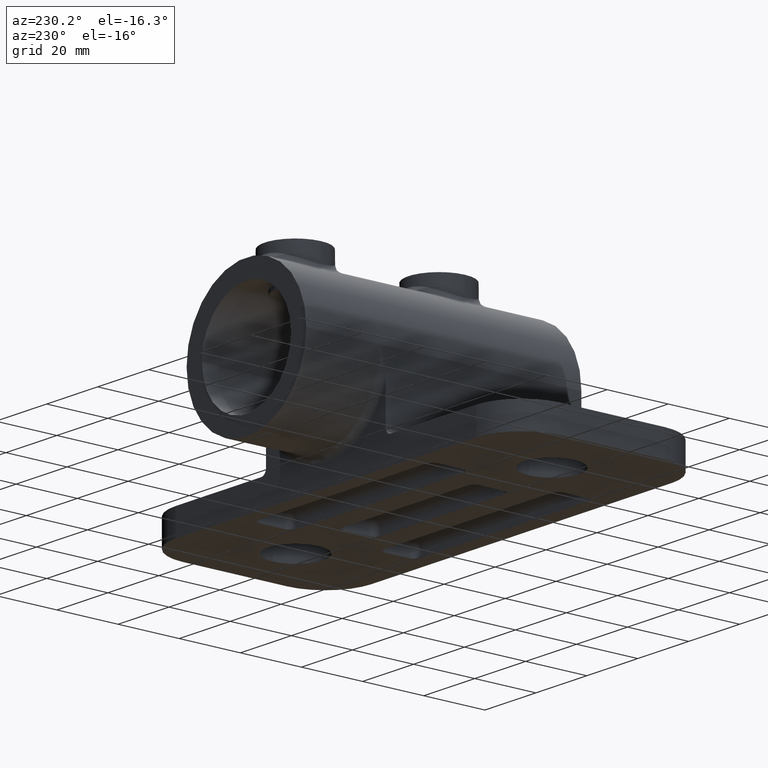
[diagram: clean part render]
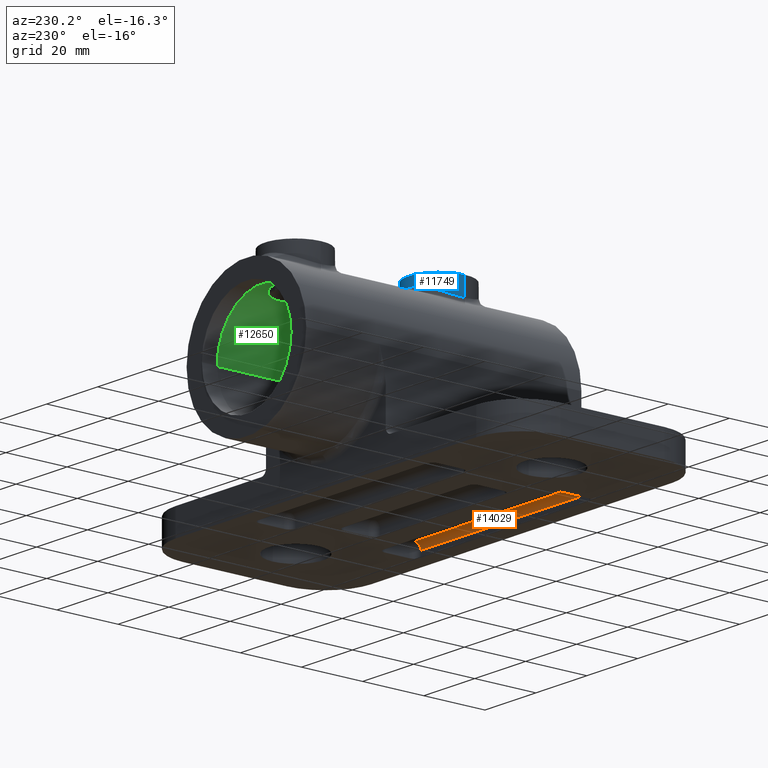
[diagram: same view with three faces highlighted in distinct colors, each labeled with its STEP entity id]
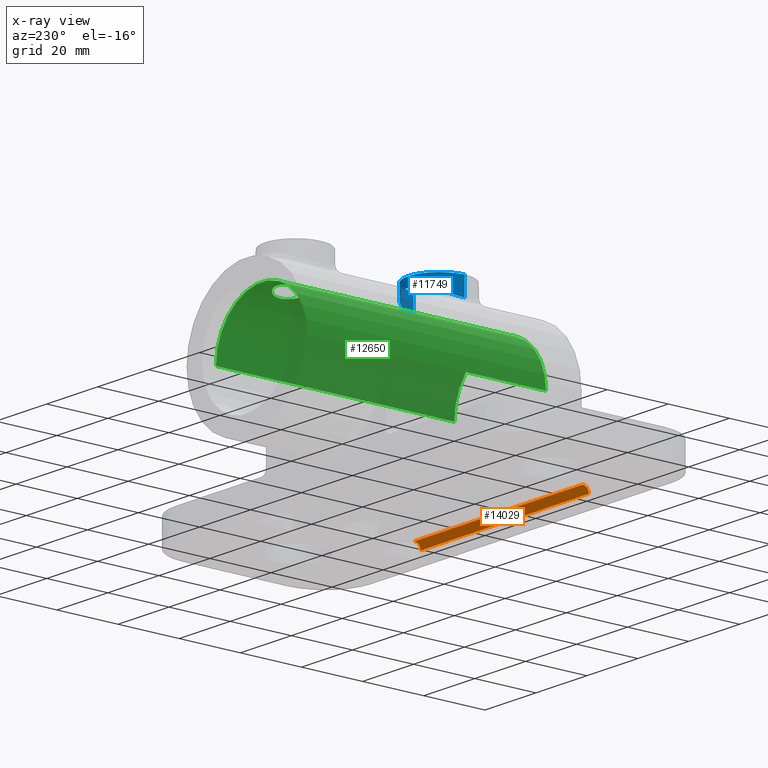
[diagram: x-ray of the same camera — body ghosted, the three highlighted faces saturated]
A machine part, auxiliary view with three faces highlighted in distinct colors.
The next image is the same camera in x-ray (body ghosted, the three faces saturated) — at least one of them is partly hidden behind the body in this view.
Their STEP definitions:

[orange] entity #14029 — the highlighted cylindrical surface (edge-blend (fillet) strip) has radius 2 mm, axis along (-1, 0, 0).
#85 = DIRECTION ( 'NONE',  ( 0.0000000000000000000, 0.0000000000000000000, -1.000000000000000000 ) ) ;
#319 = ORIENTED_EDGE ( 'NONE', *, *, #13610, .T. ) ;
#1565 = ORIENTED_EDGE ( 'NONE', *, *, #12088, .T. ) ;
#1793 = DIRECTION ( 'NONE',  ( 1.000000000000000000, -0.0000000000000000000, -0.0000000000000000000 ) ) ;
#1844 = LINE ( 'NONE', #4081, #12101 ) ;
#2598 = DIRECTION ( 'NONE',  ( 0.0000000000000000000, 0.0000000000000000000, 1.000000000000000000 ) ) ;
#2699 = EDGE_LOOP ( 'NONE', ( #1565, #9946, #319, #4720 ) ) ;
#2759 = VERTEX_POINT ( 'NONE', #7430 ) ;
#3259 = CARTESIAN_POINT ( 'NONE',  ( 33.00000000000001400, -24.49999999999999300, 4.000000000000000000 ) ) ;
#3459 = DIRECTION ( 'NONE',  ( 0.0000000000000000000, 0.0000000000000000000, 1.000000000000000000 ) ) ;
#3882 = CYLINDRICAL_SURFACE ( 'NONE', #11188, 2.000000000000000000 ) ;
#3949 = DIRECTION ( 'NONE',  ( -1.000000000000000000, 0.0000000000000000000, 0.0000000000000000000 ) ) ;
#4081 = CARTESIAN_POINT ( 'NONE',  ( 0.0000000000000000000, -24.49999999999999300, 4.000000000000000000 ) ) ;
#4720 = ORIENTED_EDGE ( 'NONE', *, *, #8122, .F. ) ;
#4721 = DIRECTION ( 'NONE',  ( 1.000000000000000000, -0.0000000000000000000, -0.0000000000000000000 ) ) ;
#4767 = CARTESIAN_POINT ( 'NONE',  ( 33.00000000000001400, -24.49999999999999300, 2.000000000000000000 ) ) ;
#6016 = VERTEX_POINT ( 'NONE', #3259 ) ;
#7430 = CARTESIAN_POINT ( 'NONE',  ( -32.99999999999999300, -24.49999999999999300, 4.000000000000000000 ) ) ;
#7622 = CARTESIAN_POINT ( 'NONE',  ( -32.99999999999999300, -24.49999999999999300, 2.000000000000000000 ) ) ;
#7727 = DIRECTION ( 'NONE',  ( -1.000000000000000000, 0.0000000000000000000, 0.0000000000000000000 ) ) ;
#7773 = CARTESIAN_POINT ( 'NONE',  ( -32.99999999999999300, -26.49999999999999600, 2.000000000000000000 ) ) ;
#8122 = EDGE_CURVE ( 'NONE', #6016, #2759, #1844, .T. ) ;
#8349 = FACE_OUTER_BOUND ( 'NONE', #2699, .T. ) ;
#9666 = EDGE_CURVE ( 'NONE', #14983, #10445, #10044, .T. ) ;
#9946 = ORIENTED_EDGE ( 'NONE', *, *, #9666, .F. ) ;
#9950 = CARTESIAN_POINT ( 'NONE',  ( 0.0000000000000000000, -24.49999999999999300, 2.000000000000000000 ) ) ;
#10044 = LINE ( 'NONE', #15382, #12533 ) ;
#10445 = VERTEX_POINT ( 'NONE', #11108 ) ;
#11108 = CARTESIAN_POINT ( 'NONE',  ( 33.00000000000001400, -26.49999999999999600, 2.000000000000000000 ) ) ;
#11188 = AXIS2_PLACEMENT_3D ( 'NONE', #9950, #3949, #2598 ) ;
#12088 = EDGE_CURVE ( 'NONE', #6016, #10445, #15287, .T. ) ;
#12101 = VECTOR ( 'NONE', #7727, 1000.000000000000000 ) ;
#12533 = VECTOR ( 'NONE', #1793, 1000.000000000000000 ) ;
#12550 = CIRCLE ( 'NONE', #15397, 2.000000000000000000 ) ;
#13610 = EDGE_CURVE ( 'NONE', #14983, #2759, #12550, .T. ) ;
#13611 = AXIS2_PLACEMENT_3D ( 'NONE', #4767, #4721, #3459 ) ;
#13793 = DIRECTION ( 'NONE',  ( -1.000000000000000000, -0.0000000000000000000, 0.0000000000000000000 ) ) ;
#14029 = ADVANCED_FACE ( 'NONE', ( #8349 ), #3882, .F. ) ;
#14983 = VERTEX_POINT ( 'NONE', #7773 ) ;
#15287 = CIRCLE ( 'NONE', #13611, 2.000000000000000000 ) ;
#15382 = CARTESIAN_POINT ( 'NONE',  ( 35.00000000000001400, -26.49999999999999600, 2.000000000000000000 ) ) ;
#15397 = AXIS2_PLACEMENT_3D ( 'NONE', #7622, #13793, #85 ) ;

[blue] entity #11749 — the highlighted cylindrical surface (partial cylindrical patch) has radius 10 mm, axis along (-0, -0, -1).
#452 = AXIS2_PLACEMENT_3D ( 'NONE', #7173, #14574, #13166 ) ;
#737 = CARTESIAN_POINT ( 'NONE',  ( 4.202443412559092400, 4.079814808181160900, 56.99886940166952300 ) ) ;
#798 = CARTESIAN_POINT ( 'NONE',  ( 8.781884316908490400, -0.1738427739617313900, 55.22339395785043300 ) ) ;
#857 = CARTESIAN_POINT ( 'NONE',  ( -0.8974320074395721900, 4.965149626604985900, 57.48031015028217200 ) ) ;
#908 = CARTESIAN_POINT ( 'NONE',  ( -10.00000000000000000, -4.999999999990628800, 54.50000000000000700 ) ) ;
#939 = DIRECTION ( 'NONE',  ( -1.000000000000000000, 0.0000000000000000000, 0.0000000000000000000 ) ) ;
#964 = CARTESIAN_POINT ( 'NONE',  ( 7.717353291189629000, 1.390650506775037900, 55.76381430800442700 ) ) ;
#965 = VERTEX_POINT ( 'NONE', #14770 ) ;
#1124 = B_SPLINE_CURVE_WITH_KNOTS ( 'NONE', 3,
 ( #13269, #7165, #15616, #8271, #15735, #8394, #5726, #798, #11907, #964, #14350, #4638, #3212, #6990, #10625, #737, #2144, #2080, #3265, #10733, #5852, #9568, #8325, #3387, #857, #9618, #2202, #9448, #2028, #4531, #10849, #10688, #14515, #11853, #5784, #14399, #9393, #12035, #3338, #7059, #11968, #4707, #13218, #9512, #5958, #908 ),
 .UNSPECIFIED., .F., .F.,
 ( 4, 2, 2, 2, 2, 2, 2, 2, 2, 2, 2, 2, 2, 2, 2, 2, 2, 2, 2, 2, 2, 2, 4 ),
 ( 0.0004743010825433168500, 0.002473722796494837800, 0.003473433653470599000, 0.004473144510446360600, 0.006472566224397885600, 0.008471987938349414100, 0.01047140965230094000, 0.01147112050927670400, 0.01247083136625246900, 0.01347054222322823500, 0.01447025308020400000, 0.01646967479415553000, 0.01746938565113129200, 0.01846909650810705700, 0.02046851822205858800, 0.02146822907903435400, 0.02246793993601011900, 0.02446736164996164400, 0.02646678336391316800, 0.02746649422088892600, 0.02846620507786468800, 0.03046562679181619900, 0.03246504850576770900 ),
 .UNSPECIFIED. ) ;
#1361 = VECTOR ( 'NONE', #12530, 1000.000000000000000 ) ;
#2028 = CARTESIAN_POINT ( 'NONE',  ( -3.441122964997928200, 4.411514090330207700, 57.17382086524881400 ) ) ;
#2048 = VERTEX_POINT ( 'NONE', #10268 ) ;
#2080 = CARTESIAN_POINT ( 'NONE',  ( 3.306689202942781700, 4.442978471801316300, 57.19204127309959800 ) ) ;
#2144 = CARTESIAN_POINT ( 'NONE',  ( 3.908341913213029700, 4.210260549690426400, 57.06766813145009100 ) ) ;
#2202 = CARTESIAN_POINT ( 'NONE',  ( -1.877204913549570800, 4.827603197816224600, 57.40318883797970500 ) ) ;
#2596 = CARTESIAN_POINT ( 'NONE',  ( -10.00000000000000000, -5.000000000000015100, 60.50000000000000000 ) ) ;
#3212 = CARTESIAN_POINT ( 'NONE',  ( 5.871224362835102200, 3.120198969581409200, 56.51654954047591400 ) ) ;
#3265 = CARTESIAN_POINT ( 'NONE',  ( 2.999139663751143400, 4.545252831983747300, 57.24761982337143000 ) ) ;
#3338 = CARTESIAN_POINT ( 'NONE',  ( -8.677692479960500200, -0.02000301374181383300, 55.27775892785310700 ) ) ;
#3387 = CARTESIAN_POINT ( 'NONE',  ( -0.5656145714056950400, 4.989405865237849000, 57.49401856347800100 ) ) ;
#3472 = CARTESIAN_POINT ( 'NONE',  ( 0.0000000000000000000, -5.000000000000015100, 60.50000000000000000 ) ) ;
#4531 = CARTESIAN_POINT ( 'NONE',  ( -4.328483127243109700, 4.020460908421007700, 56.96800329920918000 ) ) ;
#4638 = CARTESIAN_POINT ( 'NONE',  ( 6.370729125933603000, 2.733879497706559000, 56.33408414516515000 ) ) ;
#4667 = LINE ( 'NONE', #7715, #1361 ) ;
#4707 = CARTESIAN_POINT ( 'NONE',  ( -9.485964044474595600, -1.770426347278628800, 54.82062982950028400 ) ) ;
#5272 = CARTESIAN_POINT ( 'NONE',  ( 10.00000000000000000, -5.000000000000015100, 54.50000000000000700 ) ) ;
#5426 = ORIENTED_EDGE ( 'NONE', *, *, #10264, .F. ) ;
#5472 = VECTOR ( 'NONE', #15952, 1000.000000000000000 ) ;
#5648 = AXIS2_PLACEMENT_3D ( 'NONE', #3472, #8302, #939 ) ;
#5726 = CARTESIAN_POINT ( 'NONE',  ( 9.191142444055980600, -1.046998355101046700, 54.99207952168765700 ) ) ;
#5784 = CARTESIAN_POINT ( 'NONE',  ( -6.706661166500553300, 2.444847596005561600, 56.20332972267426200 ) ) ;
#5852 = CARTESIAN_POINT ( 'NONE',  ( 2.046067682437753700, 4.793972364584603500, 57.38452097239395800 ) ) ;
#5958 = CARTESIAN_POINT ( 'NONE',  ( -9.999999999999378300, -4.341118579382413900, 54.50000000000039100 ) ) ;
#6123 = ORIENTED_EDGE ( 'NONE', *, *, #13507, .T. ) ;
#6282 = CARTESIAN_POINT ( 'NONE',  ( 9.992502146471911900, -4.604843078712950600, 54.50479689285346300 ) ) ;
#6325 = CARTESIAN_POINT ( 'NONE',  ( -10.00000000000000000, -4.999999999990628800, 54.50000000000000700 ) ) ;
#6400 = EDGE_LOOP ( 'NONE', ( #5426, #11248, #7478, #6123, #9276 ) ) ;
#6990 = CARTESIAN_POINT ( 'NONE',  ( 5.059651976424375700, 3.631462714021870000, 56.76889878522977300 ) ) ;
#7059 = CARTESIAN_POINT ( 'NONE',  ( -8.978768718890783900, -0.5858829815497703700, 55.11274768960250700 ) ) ;
#7165 = CARTESIAN_POINT ( 'NONE',  ( 9.957158103175425300, -3.860204525398997600, 54.52738442315904200 ) ) ;
#7173 = CARTESIAN_POINT ( 'NONE',  ( 0.0000000000000000000, -5.000000000000015100, 60.50000000000000000 ) ) ;
#7478 = ORIENTED_EDGE ( 'NONE', *, *, #8012, .T. ) ;
#7715 = CARTESIAN_POINT ( 'NONE',  ( 10.00000000000000000, -5.000000000000014200, 60.50000000000000000 ) ) ;
#8012 = EDGE_CURVE ( 'NONE', #10144, #965, #10337, .T. ) ;
#8038 = VERTEX_POINT ( 'NONE', #6325 ) ;
#8271 = CARTESIAN_POINT ( 'NONE',  ( 9.625832381568074000, -2.270839792919725000, 54.73401771136975900 ) ) ;
#8302 = DIRECTION ( 'NONE',  ( -0.0000000000000000000, -0.0000000000000000000, -1.000000000000000000 ) ) ;
#8325 = CARTESIAN_POINT ( 'NONE',  ( 0.4206908815547585900, 5.012772678809644100, 57.50721105844552000 ) ) ;
#8394 = CARTESIAN_POINT ( 'NONE',  ( 9.315467926709683200, -1.349341017650336600, 54.91966125683678300 ) ) ;
#8785 = FACE_OUTER_BOUND ( 'NONE', #6400, .T. ) ;
#9276 = ORIENTED_EDGE ( 'NONE', *, *, #12224, .F. ) ;
#9393 = CARTESIAN_POINT ( 'NONE',  ( -7.991858988676627400, 1.044002361217745400, 55.63227827540975300 ) ) ;
#9448 = CARTESIAN_POINT ( 'NONE',  ( -2.828701595375733700, 4.613593443091350100, 57.28464812445259500 ) ) ;
#9512 = CARTESIAN_POINT ( 'NONE',  ( -9.932489184048709100, -3.668475521765463200, 54.54369440813837100 ) ) ;
#9568 = CARTESIAN_POINT ( 'NONE',  ( 1.073600518565766000, 4.963961686196354300, 57.47939311329598400 ) ) ;
#9618 = CARTESIAN_POINT ( 'NONE',  ( -1.554528958250191600, 4.883978500915715100, 57.43474222019799700 ) ) ;
#9979 = CARTESIAN_POINT ( 'NONE',  ( 9.998124099447501600, -4.762818192823984600, 54.50120079297876400 ) ) ;
#10144 = VERTEX_POINT ( 'NONE', #5272 ) ;
#10264 = EDGE_CURVE ( 'NONE', #2048, #15843, #14482, .T. ) ;
#10268 = CARTESIAN_POINT ( 'NONE',  ( 10.00000000000000000, -5.000000000000014200, 60.50000000000000000 ) ) ;
#10337 = B_SPLINE_CURVE_WITH_KNOTS ( 'NONE', 3,
 ( #12345, #13542, #9979, #6282, #11050 ),
 .UNSPECIFIED., .F., .F.,
 ( 4, 1, 4 ),
 ( 1.734723475976807100E-018, 0.0002371505412716592900, 0.0004743010825433168500 ),
 .UNSPECIFIED. ) ;
#10625 = CARTESIAN_POINT ( 'NONE',  ( 4.777554762070085600, 3.790821240478541300, 56.84967993738816000 ) ) ;
#10688 = CARTESIAN_POINT ( 'NONE',  ( -5.177398372207538700, 3.561364975102733900, 56.73395517974615400 ) ) ;
#10733 = CARTESIAN_POINT ( 'NONE',  ( 2.369848955674169300, 4.720622730898935700, 57.34378759067914900 ) ) ;
#10849 = CARTESIAN_POINT ( 'NONE',  ( -4.619372170802984500, 3.874898584719943100, 56.89258543287106600 ) ) ;
#11050 = CARTESIAN_POINT ( 'NONE',  ( 9.988754510338575100, -4.525886793908045800, 54.50719191721514500 ) ) ;
#11248 = ORIENTED_EDGE ( 'NONE', *, *, #15021, .T. ) ;
#11561 = CARTESIAN_POINT ( 'NONE',  ( -10.00000000000000000, -5.000000000000015100, 60.50000000000000000 ) ) ;
#11749 = ADVANCED_FACE ( 'NONE', ( #8785 ), #14729, .T. ) ;
#11853 = CARTESIAN_POINT ( 'NONE',  ( -6.224945664710150000, 2.851720731232130700, 56.38991945562645500 ) ) ;
#11907 = CARTESIAN_POINT ( 'NONE',  ( 8.459269658909750700, 0.3701687644457116700, 55.39735926411588500 ) ) ;
#11968 = CARTESIAN_POINT ( 'NONE',  ( -9.117058833981762000, -0.8789985227411928300, 55.03438634898666500 ) ) ;
#12035 = CARTESIAN_POINT ( 'NONE',  ( -8.515066063825610600, 0.2529604593990210600, 55.36434530760640600 ) ) ;
#12224 = EDGE_CURVE ( 'NONE', #15843, #8038, #15680, .T. ) ;
#12345 = CARTESIAN_POINT ( 'NONE',  ( 10.00000000000000000, -5.000000000000015100, 54.50000000000000700 ) ) ;
#12530 = DIRECTION ( 'NONE',  ( -0.0000000000000000000, -0.0000000000000000000, -1.000000000000000000 ) ) ;
#13166 = DIRECTION ( 'NONE',  ( 1.000000000000000000, 0.0000000000000000000, 0.0000000000000000000 ) ) ;
#13218 = CARTESIAN_POINT ( 'NONE',  ( -9.674629748832099800, -2.386795444211209400, 54.70459481365085700 ) ) ;
#13269 = CARTESIAN_POINT ( 'NONE',  ( 9.988754510338575100, -4.525886793908045800, 54.50719191721514500 ) ) ;
#13507 = EDGE_CURVE ( 'NONE', #965, #8038, #1124, .T. ) ;
#13542 = CARTESIAN_POINT ( 'NONE',  ( 9.999999999999998200, -4.920918494425964500, 54.50000000000000000 ) ) ;
#14350 = CARTESIAN_POINT ( 'NONE',  ( 7.293341700243885000, 1.870680353833111600, 55.95817364610378800 ) ) ;
#14399 = CARTESIAN_POINT ( 'NONE',  ( -7.596369620477956300, 1.534541171274076000, 55.82176337293267200 ) ) ;
#14482 = CIRCLE ( 'NONE', #452, 10.00000000000000000 ) ;
#14515 = CARTESIAN_POINT ( 'NONE',  ( -5.446372741348914000, 3.392668866621323200, 56.65035169605052100 ) ) ;
#14574 = DIRECTION ( 'NONE',  ( 0.0000000000000000000, 0.0000000000000000000, 1.000000000000000000 ) ) ;
#14729 = CYLINDRICAL_SURFACE ( 'NONE', #5648, 10.00000000000000000 ) ;
#14770 = CARTESIAN_POINT ( 'NONE',  ( 9.988754510338575100, -4.525886793908045800, 54.50719191721514500 ) ) ;
#15021 = EDGE_CURVE ( 'NONE', #2048, #10144, #4667, .T. ) ;
#15616 = CARTESIAN_POINT ( 'NONE',  ( 9.860534723090122400, -3.214023272672885200, 54.58944742188821000 ) ) ;
#15680 = LINE ( 'NONE', #2596, #5472 ) ;
#15735 = CARTESIAN_POINT ( 'NONE',  ( 9.532505129653280600, -1.960822536918759500, 54.79079304849613400 ) ) ;
#15843 = VERTEX_POINT ( 'NONE', #11561 ) ;
#15952 = DIRECTION ( 'NONE',  ( -0.0000000000000000000, -0.0000000000000000000, -1.000000000000000000 ) ) ;

[green] entity #12650 — the highlighted cylindrical surface (partial cylindrical patch) has radius 18 mm, axis along (-0, -1, 0).
#10 = CARTESIAN_POINT ( 'NONE',  ( 5.700288581353437000, -3.465553718506579900, 49.07367201749632100 ) ) ;
#69 = CARTESIAN_POINT ( 'NONE',  ( -0.7792966384515384000, 0.8611049642852177700, 49.98714456683021700 ) ) ;
#107 = EDGE_CURVE ( 'NONE', #12876, #9114, #13823, .T. ) ;
#117 = CARTESIAN_POINT ( 'NONE',  ( 5.297805365069574000, -2.374655498447134000, 49.20341653813273600 ) ) ;
#133 = VECTOR ( 'NONE', #5233, 1000.000000000000000 ) ;
#170 = CARTESIAN_POINT ( 'NONE',  ( -4.688314003953420800, -1.397666235263747400, 49.38013019639038200 ) ) ;
#249 = CARTESIAN_POINT ( 'NONE',  ( -5.708469957345782200, -6.541337117523038800, 49.07102582291550900 ) ) ;
#253 = CARTESIAN_POINT ( 'NONE',  ( -0.3902309496287959000, 36.10967878153501700, 49.99682053144062600 ) ) ;
#300 = CARTESIAN_POINT ( 'NONE',  ( 5.586793662114989600, 40.09328386085515200, 49.11114563399321800 ) ) ;
#341 = CARTESIAN_POINT ( 'NONE',  ( 1.536557827171986900, -10.69971432233089300, 49.93526818897861100 ) ) ;
#345 = CARTESIAN_POINT ( 'NONE',  ( 5.520500977030940800, 39.90923186453517200, 49.13272108228019200 ) ) ;
#398 = CARTESIAN_POINT ( 'NONE',  ( -5.595498191781887300, -6.910201160467650500, 49.10890141639299600 ) ) ;
#449 = CARTESIAN_POINT ( 'NONE',  ( 18.00000000000000700, 52.99999999999998600, 32.00000000000000000 ) ) ;
#456 = CARTESIAN_POINT ( 'NONE',  ( 0.3894043785967176700, -10.89995714199231200, 49.99998595209755300 ) ) ;
#479 = CARTESIAN_POINT ( 'NONE',  ( -5.852218664619819300, -4.225796023473378700, 49.02210171841616000 ) ) ;
#536 = B_SPLINE_CURVE_WITH_KNOTS ( 'NONE', 3,
 ( #13686, #15222, #8958, #13850, #1585, #10180, #2773, #11405, #13952, #8902, #7725, #11349, #5174, #10287, #1637, #4076, #3973, #4025, #12594, #12640, #5228, #253, #12537, #2674, #9117, #6479, #11305, #5334, #12687, #6584, #14002, #15170, #2868, #10230, #15079, #6526, #7676, #345, #300, #1473, #2817, #10135, #3929, #1526 ),
 .UNSPECIFIED., .F., .F.,
 ( 4, 2, 2, 2, 2, 2, 2, 2, 2, 2, 2, 2, 2, 2, 2, 2, 2, 2, 2, 2, 2, 4 ),
 ( 0.01857493708364867100, 0.01915524997473587500, 0.01973556286582307800, 0.02089618864799746800, 0.02205681443017185400, 0.02321744021234624000, 0.02379775310343343300, 0.02437806599452062300, 0.02553869177669500600, 0.02669931755886938800, 0.02727963044995657800, 0.02785994334104376800, 0.02902056912321814700, 0.02960088201430534000, 0.03018119490539253300, 0.03134182068756692600, 0.03250244646974132700, 0.03366307225191572000, 0.03482369803409012000, 0.03540401092517732300, 0.03598432381626454100, 0.03714494959843896900 ),
 .UNSPECIFIED. ) ;
#944 = CARTESIAN_POINT ( 'NONE',  ( -5.852218664619818400, 42.77420397652662100, 49.02210171841613800 ) ) ;
#1003 = CARTESIAN_POINT ( 'NONE',  ( -1.538436291759510500, 47.70903393134670300, 49.93816843200412600 ) ) ;
#1056 = CARTESIAN_POINT ( 'NONE',  ( -0.7792966384515392900, 47.86110496428522500, 49.98714456683021700 ) ) ;
#1090 = LINE ( 'NONE', #13757, #133 ) ;
#1146 = CARTESIAN_POINT ( 'NONE',  ( 4.679500392762672200, 45.59851884893898000, 49.38154912533406100 ) ) ;
#1237 = CARTESIAN_POINT ( 'NONE',  ( -5.899999999999992400, -5.000000000000007100, 49.00558731711434000 ) ) ;
#1245 = CARTESIAN_POINT ( 'NONE',  ( 3.901009467089473500, -0.5572492271389254400, 49.57439182870286500 ) ) ;
#1470 = CARTESIAN_POINT ( 'NONE',  ( -1.538796806007453500, -10.70887397032133800, 49.93811789357870600 ) ) ;
#1473 = CARTESIAN_POINT ( 'NONE',  ( 5.700240793470978700, 40.46537146032891000, 49.07368803824241600 ) ) ;
#1503 = CARTESIAN_POINT ( 'NONE',  ( -5.899999999999995000, -4.806562791024030700, 49.00558731711435500 ) ) ;
#1524 = CARTESIAN_POINT ( 'NONE',  ( 2.622868892466022800, -10.29893220406774500, 49.81148053195263300 ) ) ;
#1526 = CARTESIAN_POINT ( 'NONE',  ( 5.899999999999992400, 41.99999999999999300, 49.00558731711434000 ) ) ;
#1581 = CARTESIAN_POINT ( 'NONE',  ( -3.442336333834672000, -9.795504647700648000, 49.66851478055463800 ) ) ;
#1585 = CARTESIAN_POINT ( 'NONE',  ( -5.823443968952062700, 41.03274218461716300, 49.03200335590671000 ) ) ;
#1634 = CARTESIAN_POINT ( 'NONE',  ( 4.689960043742107000, -8.600209716632317500, 49.37968544622648200 ) ) ;
#1637 = CARTESIAN_POINT ( 'NONE',  ( -3.442336333834674600, 37.20449535229934700, 49.66851478055462400 ) ) ;
#1679 = CARTESIAN_POINT ( 'NONE',  ( 5.700240793470976000, -6.534628539671101200, 49.07368803824240900 ) ) ;
#1954 = FACE_BOUND ( 'NONE', #11865, .T. ) ;
#2181 = CARTESIAN_POINT ( 'NONE',  ( 1.909272364198209200, 47.58590088859354200, 49.89942447837675800 ) ) ;
#2394 = CARTESIAN_POINT ( 'NONE',  ( 5.700288581353440500, 43.53444628149341600, 49.07367201749632800 ) ) ;
#2484 = CARTESIAN_POINT ( 'NONE',  ( -0.3852845513224108500, 0.9001754436175736200, 50.00005750651379800 ) ) ;
#2597 = CIRCLE ( 'NONE', #5337, 18.00000000000000000 ) ;
#2601 = CARTESIAN_POINT ( 'NONE',  ( -3.597588860755663600, -0.3197877273164391700, 49.63747309397396600 ) ) ;
#2674 = CARTESIAN_POINT ( 'NONE',  ( 0.3894043785967109000, 36.10004285800769000, 49.99998595209756000 ) ) ;
#2723 = CARTESIAN_POINT ( 'NONE',  ( 3.901741128457477900, -9.442140779556144300, 49.57423282209992300 ) ) ;
#2731 = ORIENTED_EDGE ( 'NONE', *, *, #107, .T. ) ;
#2741 = FACE_BOUND ( 'NONE', #8647, .T. ) ;
#2752 = ORIENTED_EDGE ( 'NONE', *, *, #8591, .T. ) ;
#2771 = CARTESIAN_POINT ( 'NONE',  ( -4.444778238379124800, -8.899020662578415400, 49.44483735584398000 ) ) ;
#2773 = CARTESIAN_POINT ( 'NONE',  ( -5.595498191781889100, 40.08979883953236400, 49.10890141639299600 ) ) ;
#2814 = CARTESIAN_POINT ( 'NONE',  ( 2.089906028857205100, -10.52080824908267900, 49.87916001333241000 ) ) ;
#2817 = CARTESIAN_POINT ( 'NONE',  ( 5.747459070225595200, 40.65313450025095000, 49.05779342116272800 ) ) ;
#2868 = CARTESIAN_POINT ( 'NONE',  ( 3.901741128457472100, 37.55785922044386600, 49.57423282209993700 ) ) ;
#3420 = CARTESIAN_POINT ( 'NONE',  ( -5.899999999999994100, 42.19343720897597900, 49.00558731711434700 ) ) ;
#3482 = CARTESIAN_POINT ( 'NONE',  ( 5.116440614131539300, 44.96310572368302200, 49.25895448682168600 ) ) ;
#3493 = VECTOR ( 'NONE', #7106, 1000.000000000000000 ) ;
#3541 = CARTESIAN_POINT ( 'NONE',  ( -4.688314003953420800, 45.60233376473625800, 49.38013019639037500 ) ) ;
#3592 = CARTESIAN_POINT ( 'NONE',  ( 5.520590496151467800, 44.09054405198752100, 49.13269246620235700 ) ) ;
#3643 = CARTESIAN_POINT ( 'NONE',  ( -5.300385195492851600, 44.61989444368563800, 49.20261350923345100 ) ) ;
#3680 = CARTESIAN_POINT ( 'NONE',  ( 5.861174120720047400, -4.221589336549363300, 49.01919631766605100 ) ) ;
#3710 = CARTESIAN_POINT ( 'NONE',  ( -5.899999999999992400, -5.000000000000007100, 49.00558731711434000 ) ) ;
#3769 = CARTESIAN_POINT ( 'NONE',  ( 6.938893903907231500E-015, 57.99999999999997900, 32.00000000000000000 ) ) ;
#3789 = CARTESIAN_POINT ( 'NONE',  ( 5.116440614131535700, -2.036894276316983300, 49.25895448682168600 ) ) ;
#3843 = CARTESIAN_POINT ( 'NONE',  ( 2.961341189652160200, 0.1176960034156181600, 49.75775371788915200 ) ) ;
#3929 = CARTESIAN_POINT ( 'NONE',  ( 5.899999999999992400, 41.60732325769157600, 49.00558731711433300 ) ) ;
#3970 = CARTESIAN_POINT ( 'NONE',  ( 5.586793662114989600, -6.906716139144861300, 49.11114563399321800 ) ) ;
#3973 = CARTESIAN_POINT ( 'NONE',  ( -2.625197408002631700, 36.70194584723557800, 49.81120896846742600 ) ) ;
#4022 = CARTESIAN_POINT ( 'NONE',  ( -1.907555930792676600, -10.59663020106794000, 49.90229194042750300 ) ) ;
#4025 = CARTESIAN_POINT ( 'NONE',  ( -1.907555930792681900, 36.40336979893204700, 49.90229194042751000 ) ) ;
#4076 = CARTESIAN_POINT ( 'NONE',  ( -2.965858495913153500, 36.88532890327765300, 49.75691581682710300 ) ) ;
#4169 = CARTESIAN_POINT ( 'NONE',  ( -5.299527590938987000, -7.621731450885618200, 49.20288100880097200 ) ) ;
#4683 = CARTESIAN_POINT ( 'NONE',  ( 5.586877510254797800, 43.90646662360150300, 49.11111819131510000 ) ) ;
#4739 = CARTESIAN_POINT ( 'NONE',  ( 2.090574988835959900, 47.52054120841866300, 49.87907808908838100 ) ) ;
#4784 = CARTESIAN_POINT ( 'NONE',  ( 3.605658795320629400, 46.68610485122065500, 49.63821372470759000 ) ) ;
#4841 = CARTESIAN_POINT ( 'NONE',  ( -4.446084662792245900, 45.89743210303263500, 49.44449060285262500 ) ) ;
#4944 = CARTESIAN_POINT ( 'NONE',  ( 5.586877510254794300, -3.093533376398486900, 49.11111819131510000 ) ) ;
#5050 = CARTESIAN_POINT ( 'NONE',  ( 5.520590496151466900, -2.909455948012464900, 49.13269246620234300 ) ) ;
#5150 = CARTESIAN_POINT ( 'NONE',  ( 4.306235953411770000, -0.9623262592721096900, 49.47786064329151400 ) ) ;
#5160 = VERTEX_POINT ( 'NONE', #449 ) ;
#5174 = CARTESIAN_POINT ( 'NONE',  ( -3.892476523976372800, 37.56204514506927000, 49.57474354446229400 ) ) ;
#5225 = CARTESIAN_POINT ( 'NONE',  ( 5.861168708117641100, -5.778480011505610700, 49.01919827803015300 ) ) ;
#5228 = CARTESIAN_POINT ( 'NONE',  ( -0.7790215288988305800, 36.14839426240462200, 49.98418624493317000 ) ) ;
#5233 = DIRECTION ( 'NONE',  ( -9.376883653928692300E-017, -1.000000000000000000, 0.0000000000000000000 ) ) ;
#5334 = CARTESIAN_POINT ( 'NONE',  ( 1.908234157178217100, 36.41373150360586000, 49.89953902669589800 ) ) ;
#5337 = AXIS2_PLACEMENT_3D ( 'NONE', #13613, #6239, #15951 ) ;
#5377 = CARTESIAN_POINT ( 'NONE',  ( 0.7743228356901891200, -10.86186467884772700, 49.98739186473549300 ) ) ;
#5435 = CARTESIAN_POINT ( 'NONE',  ( -3.595898319852526700, -9.681488231042799000, 49.63781447392526800 ) ) ;
#5935 = CARTESIAN_POINT ( 'NONE',  ( 4.306235953411771800, 46.03767374072789000, 49.47786064329151400 ) ) ;
#5989 = CARTESIAN_POINT ( 'NONE',  ( -5.595659030289205300, 43.90958899593538000, 49.10884551293290200 ) ) ;
#6141 = CARTESIAN_POINT ( 'NONE',  ( -5.708345529852086200, 43.54153160404150900, 49.07106680427987300 ) ) ;
#6185 = CARTESIAN_POINT ( 'NONE',  ( 3.605658795320628100, -0.3138951487793551500, 49.63821372470759700 ) ) ;
#6239 = DIRECTION ( 'NONE',  ( -9.376883653928691100E-017, -1.000000000000000000, -0.0000000000000000000 ) ) ;
#6247 = CARTESIAN_POINT ( 'NONE',  ( 1.538331868077180900, 0.6992231717611471200, 49.93511228516460000 ) ) ;
#6249 = FACE_OUTER_BOUND ( 'NONE', #9214, .T. ) ;
#6274 = CARTESIAN_POINT ( 'NONE',  ( -5.890515209385440300, -5.386681440224113400, 49.00888703088636300 ) ) ;
#6300 = CARTESIAN_POINT ( 'NONE',  ( 4.795410455726926800, -1.557467707773943400, 49.34982441395688100 ) ) ;
#6347 = CARTESIAN_POINT ( 'NONE',  ( -3.894923884804915000, -0.5641685717345774600, 49.57420469561186100 ) ) ;
#6397 = CARTESIAN_POINT ( 'NONE',  ( -4.446084662792243200, -1.102567896967362200, 49.44449060285261100 ) ) ;
#6430 = CARTESIAN_POINT ( 'NONE',  ( 1.345980334673610100, -10.74770347881833900, 49.95062108747294600 ) ) ;
#6476 = CARTESIAN_POINT ( 'NONE',  ( 4.442456762486811400, -8.901381351819830800, 49.44539541060352400 ) ) ;
#6479 = CARTESIAN_POINT ( 'NONE',  ( 1.345980334673599900, 36.25229652118167000, 49.95062108747293900 ) ) ;
#6524 = CARTESIAN_POINT ( 'NONE',  ( -2.965858495913150000, -10.11467109672236100, 49.75691581682708200 ) ) ;
#6526 = CARTESIAN_POINT ( 'NONE',  ( 5.116767203905320500, 39.03758061769266900, 49.25884946346982200 ) ) ;
#6584 = CARTESIAN_POINT ( 'NONE',  ( 2.622868892466018400, 36.70106779593226800, 49.81148053195264700 ) ) ;
#6633 = CYLINDRICAL_SURFACE ( 'NONE', #7799, 18.00000000000000000 ) ;
#7106 = DIRECTION ( 'NONE',  ( -9.376883653928692300E-017, -1.000000000000000000, 0.0000000000000000000 ) ) ;
#7198 = CARTESIAN_POINT ( 'NONE',  ( 1.538331868077182700, 47.69922317176114000, 49.93511228516458500 ) ) ;
#7257 = CARTESIAN_POINT ( 'NONE',  ( 5.747493635036656600, 43.34671386114722900, 49.05778175081325500 ) ) ;
#7297 = CARTESIAN_POINT ( 'NONE',  ( -0.3852845513224108500, 47.90017544361758400, 50.00005750651380500 ) ) ;
#7448 = CARTESIAN_POINT ( 'NONE',  ( 5.899999999999992400, -5.000000000000007100, 49.00558731711434000 ) ) ;
#7493 = CARTESIAN_POINT ( 'NONE',  ( 1.347677912052307900, 0.7473132791308999500, 49.95049597385244800 ) ) ;
#7548 = CARTESIAN_POINT ( 'NONE',  ( -1.907743146686815300, 0.5965838957647644500, 49.90227652478495900 ) ) ;
#7603 = CARTESIAN_POINT ( 'NONE',  ( -4.038785361070676300, -0.6947561899681520300, 49.54159893261255800 ) ) ;
#7634 = DIRECTION ( 'NONE',  ( 1.000000000000000000, 0.0000000000000000000, 0.0000000000000000000 ) ) ;
#7657 = CARTESIAN_POINT ( 'NONE',  ( -5.300385195492853400, -2.380105556314374000, 49.20261350923346600 ) ) ;
#7674 = CARTESIAN_POINT ( 'NONE',  ( -0.7790215288988309200, -10.85160573759538800, 49.98418624493318400 ) ) ;
#7676 = CARTESIAN_POINT ( 'NONE',  ( 5.297859711735885200, 39.37480434834569800, 49.20339888967285400 ) ) ;
#7697 = CARTESIAN_POINT ( 'NONE',  ( -5.899999999999992400, -5.000000000000007100, 49.00558731711434000 ) ) ;
#7725 = CARTESIAN_POINT ( 'NONE',  ( -4.444778238379127400, 38.10097933742160600, 49.44483735584397300 ) ) ;
#7778 = CARTESIAN_POINT ( 'NONE',  ( 5.899999999999992400, -5.000000000000007100, 49.00558731711434000 ) ) ;
#7799 = AXIS2_PLACEMENT_3D ( 'NONE', #3769, #11306, #7634 ) ;
#7808 = CARTESIAN_POINT ( 'NONE',  ( -5.708345529852085300, -3.458468395958489900, 49.07106680427987300 ) ) ;
#7831 = CARTESIAN_POINT ( 'NONE',  ( -5.823443968952064500, -5.967257815382833300, 49.03200335590671700 ) ) ;
#7871 = CARTESIAN_POINT ( 'NONE',  ( -5.114294537290216900, -7.966648142660164700, 49.25958336007426700 ) ) ;
#7903 = CARTESIAN_POINT ( 'NONE',  ( -5.823132400944032800, -4.030974131054299500, 49.03210972463974600 ) ) ;
#8187 = EDGE_CURVE ( 'NONE', #11660, #12680, #1090, .T. ) ;
#8372 = CARTESIAN_POINT ( 'NONE',  ( 0.7753890217117778100, 47.86175354287789900, 49.98735493930989500 ) ) ;
#8425 = CARTESIAN_POINT ( 'NONE',  ( 3.901009467089474800, 46.44275077286106800, 49.57439182870285800 ) ) ;
#8439 = DIRECTION ( 'NONE',  ( -9.376883653928691100E-017, -1.000000000000000000, 0.0000000000000000000 ) ) ;
#8591 = EDGE_CURVE ( 'NONE', #15050, #13060, #8974, .T. ) ;
#8647 = EDGE_LOOP ( 'NONE', ( #11220, #2731 ) ) ;
#8659 = CARTESIAN_POINT ( 'NONE',  ( 0.7753890217117782600, 0.8617535428778867500, 49.98735493930991000 ) ) ;
#8718 = CARTESIAN_POINT ( 'NONE',  ( -1.538436291759508900, 0.7090339313466992300, 49.93816843200412600 ) ) ;
#8759 = ORIENTED_EDGE ( 'NONE', *, *, #8187, .F. ) ;
#8778 = CARTESIAN_POINT ( 'NONE',  ( -2.966438377601105600, 0.1143860914043131800, 49.75682868153325700 ) ) ;
#8782 = B_SPLINE_CURVE_WITH_KNOTS ( 'NONE', 3,
 ( #7448, #12515, #3680, #13618, #10, #4944, #5050, #117, #3789, #6300, #14900, #13715, #5150, #1245, #6185, #3843, #13778, #8825, #11231, #6247, #7493, #8659, #14951, #2484, #69, #8718, #7548, #12470, #8778, #10002, #2601, #6347, #7603, #6397, #170, #14995, #7657, #12617, #7808, #7903, #479, #10307, #1503, #7697 ),
 .UNSPECIFIED., .F., .F.,
 ( 4, 2, 2, 2, 2, 2, 2, 2, 2, 2, 2, 2, 2, 2, 2, 2, 2, 2, 2, 2, 2, 4 ),
 ( 8.673617379884035500E-019, 0.001160933567728044100, 0.001741400351592067200, 0.002321867135456090400, 0.003482800703184133600, 0.004063267487048155900, 0.004643734270912179000, 0.005804667838640220100, 0.006965601406368261200, 0.007546068190232280800, 0.008126534974096301400, 0.009287468541824342400, 0.01044840210955238400, 0.01160933567728042500, 0.01277026924500846200, 0.01335073602887248600, 0.01393120281273650700, 0.01509213638046454800, 0.01625306994819259200, 0.01741400351592063300, 0.01799447029978465400, 0.01857493708364867400 ),
 .UNSPECIFIED. ) ;
#8825 = CARTESIAN_POINT ( 'NONE',  ( 2.090574988835959000, 0.5205412084186605800, 49.87907808908838800 ) ) ;
#8902 = CARTESIAN_POINT ( 'NONE',  ( -4.687317913491680700, 38.39638229075758600, 49.38039922312973600 ) ) ;
#8955 = CARTESIAN_POINT ( 'NONE',  ( -0.3902309496287949000, -10.89032121846499600, 49.99682053144064000 ) ) ;
#8958 = CARTESIAN_POINT ( 'NONE',  ( -5.890515209385440300, 41.61331855977589100, 49.00888703088636300 ) ) ;
#8974 = B_SPLINE_CURVE_WITH_KNOTS ( 'NONE', 3,
 ( #12068, #12274, #13304, #7257, #2394, #4683, #3592, #14701, #3482, #13519, #1146, #15918, #5935, #8425, #4784, #14548, #12108, #4739, #2181, #7198, #9597, #8372, #13365, #7297, #1056, #1003, #10976, #12166, #9805, #11033, #15874, #12223, #10880, #4841, #3541, #15763, #3643, #5989, #6141, #9652, #944, #10825, #3420, #14595 ),
 .UNSPECIFIED., .F., .F.,
 ( 4, 2, 2, 2, 2, 2, 2, 2, 2, 2, 2, 2, 2, 2, 2, 2, 2, 2, 2, 2, 2, 4 ),
 ( 0.0000000000000000000, 0.001160933567728035700, 0.001741400351592054500, 0.002321867135456073000, 0.003482800703184110200, 0.004063267487048129900, 0.004643734270912150400, 0.005804667838640186300, 0.006965601406368222100, 0.007546068190232239200, 0.008126534974096258000, 0.009287468541824293900, 0.01044840210955233000, 0.01160933567728036600, 0.01277026924500840100, 0.01335073602887242000, 0.01393120281273644100, 0.01509213638046449400, 0.01625306994819254700, 0.01741400351592059900, 0.01799447029978463300, 0.01857493708364867100 ),
 .UNSPECIFIED. ) ;
#9057 = CARTESIAN_POINT ( 'NONE',  ( 2.963781068367513400, -10.11621913240261300, 49.75733217995614400 ) ) ;
#9081 = CIRCLE ( 'NONE', #10087, 18.00000000000000000 ) ;
#9113 = CARTESIAN_POINT ( 'NONE',  ( -4.687317913491681600, -8.603617709242412200, 49.38039922312975000 ) ) ;
#9114 = VERTEX_POINT ( 'NONE', #15699 ) ;
#9117 = CARTESIAN_POINT ( 'NONE',  ( 0.7743228356901813400, 36.13813532115227600, 49.98739186473548600 ) ) ;
#9214 = EDGE_LOOP ( 'NONE', ( #8759, #10090, #14497, #12627 ) ) ;
#9498 = EDGE_CURVE ( 'NONE', #10854, #12680, #9081, .T. ) ;
#9597 = CARTESIAN_POINT ( 'NONE',  ( 1.347677912052309500, 47.74731327913090700, 49.95049597385246200 ) ) ;
#9623 = EDGE_CURVE ( 'NONE', #13060, #15050, #536, .T. ) ;
#9652 = CARTESIAN_POINT ( 'NONE',  ( -5.823132400944032800, 42.96902586894570000, 49.03210972463974600 ) ) ;
#9805 = CARTESIAN_POINT ( 'NONE',  ( -2.966438377601107000, 47.11438609140432700, 49.75682868153325700 ) ) ;
#10002 = CARTESIAN_POINT ( 'NONE',  ( -3.443698726007803100, -0.2054599261758431600, 49.66825173730691000 ) ) ;
#10087 = AXIS2_PLACEMENT_3D ( 'NONE', #15778, #8439, #15888 ) ;
#10090 = ORIENTED_EDGE ( 'NONE', *, *, #11138, .F. ) ;
#10133 = CARTESIAN_POINT ( 'NONE',  ( 1.908234157178224200, -10.58626849639414200, 49.89953902669591200 ) ) ;
#10135 = CARTESIAN_POINT ( 'NONE',  ( 5.861168708117640200, 41.22151998849439300, 49.01919827803013900 ) ) ;
#10180 = CARTESIAN_POINT ( 'NONE',  ( -5.708469957345777800, 40.45866288247696500, 49.07102582291550900 ) ) ;
#10228 = CARTESIAN_POINT ( 'NONE',  ( 3.606542097413270000, -9.685354899211164400, 49.63801855283367800 ) ) ;
#10230 = CARTESIAN_POINT ( 'NONE',  ( 4.442456762486807000, 38.09861864818015700, 49.44539541060353100 ) ) ;
#10282 = CARTESIAN_POINT ( 'NONE',  ( 5.297859711735888800, -7.625195651654296500, 49.20339888967284000 ) ) ;
#10287 = CARTESIAN_POINT ( 'NONE',  ( -3.595898319852529800, 37.31851176895720100, 49.63781447392526000 ) ) ;
#10307 = CARTESIAN_POINT ( 'NONE',  ( -5.890510443282705600, -4.613035126437033300, 49.00888876229744500 ) ) ;
#10825 = CARTESIAN_POINT ( 'NONE',  ( -5.890510443282707300, 42.38696487356297400, 49.00888876229743100 ) ) ;
#10854 = VERTEX_POINT ( 'NONE', #14362 ) ;
#10880 = CARTESIAN_POINT ( 'NONE',  ( -4.038785361070678100, 46.30524381003184000, 49.54159893261255100 ) ) ;
#10976 = CARTESIAN_POINT ( 'NONE',  ( -1.907743146686818000, 47.59658389576476600, 49.90227652478495900 ) ) ;
#11033 = CARTESIAN_POINT ( 'NONE',  ( -3.443698726007804500, 46.79454007382415900, 49.66825173730691000 ) ) ;
#11138 = EDGE_CURVE ( 'NONE', #5160, #11660, #2597, .T. ) ;
#11220 = ORIENTED_EDGE ( 'NONE', *, *, #13286, .T. ) ;
#11231 = CARTESIAN_POINT ( 'NONE',  ( 1.909272364198206300, 0.5859008885935316200, 49.89942447837674400 ) ) ;
#11305 = CARTESIAN_POINT ( 'NONE',  ( 1.536557827171981700, 36.30028567766911600, 49.93526818897860400 ) ) ;
#11306 = DIRECTION ( 'NONE',  ( -9.376883653928692300E-017, -1.000000000000000000, 0.0000000000000000000 ) ) ;
#11346 = CARTESIAN_POINT ( 'NONE',  ( 5.520500977030945200, -7.090768135464825800, 49.13272108228020600 ) ) ;
#11349 = CARTESIAN_POINT ( 'NONE',  ( -4.036207250694358700, 37.69231675278488300, 49.54219575821387900 ) ) ;
#11401 = CARTESIAN_POINT ( 'NONE',  ( -3.892476523976369200, -9.437954854930735500, 49.57474354446229400 ) ) ;
#11405 = CARTESIAN_POINT ( 'NONE',  ( -5.299527590938985200, 39.37826854911440200, 49.20288100880095100 ) ) ;
#11422 = CARTESIAN_POINT ( 'NONE',  ( -5.899999999999992400, 41.99999999999999300, 49.00558731711434000 ) ) ;
#11554 = CARTESIAN_POINT ( 'NONE',  ( -2.625197408002627200, -10.29805415276443300, 49.81120896846743300 ) ) ;
#11660 = VERTEX_POINT ( 'NONE', #14325 ) ;
#11865 = EDGE_LOOP ( 'NONE', ( #2752, #15969 ) ) ;
#12068 = CARTESIAN_POINT ( 'NONE',  ( 5.899999999999992400, 41.99999999999999300, 49.00558731711434000 ) ) ;
#12108 = CARTESIAN_POINT ( 'NONE',  ( 2.622431321001829700, 47.29909143512446000, 49.81153003998522900 ) ) ;
#12166 = CARTESIAN_POINT ( 'NONE',  ( -2.625827637699866800, 47.29776032235845700, 49.81112062450558400 ) ) ;
#12223 = CARTESIAN_POINT ( 'NONE',  ( -3.894923884804919900, 46.43583142826541600, 49.57420469561185400 ) ) ;
#12274 = CARTESIAN_POINT ( 'NONE',  ( 5.899999999999989700, 42.39278087598387400, 49.00558731711433300 ) ) ;
#12470 = CARTESIAN_POINT ( 'NONE',  ( -2.625827637699865000, 0.2977603223584557300, 49.81112062450559800 ) ) ;
#12515 = CARTESIAN_POINT ( 'NONE',  ( 5.899999999999991500, -4.607219124016126000, 49.00558731711434000 ) ) ;
#12537 = CARTESIAN_POINT ( 'NONE',  ( -0.1937273411380451600, 36.09997862468702600, 50.00000700635252600 ) ) ;
#12551 = LINE ( 'NONE', #15513, #3493 ) ;
#12594 = CARTESIAN_POINT ( 'NONE',  ( -1.538796806007457700, 36.29112602967867200, 49.93811789357869200 ) ) ;
#12617 = CARTESIAN_POINT ( 'NONE',  ( -5.595659030289205300, -3.090411004064621500, 49.10884551293289500 ) ) ;
#12627 = ORIENTED_EDGE ( 'NONE', *, *, #9498, .T. ) ;
#12637 = CARTESIAN_POINT ( 'NONE',  ( 5.747459070225592500, -6.346865499749069900, 49.05779342116271400 ) ) ;
#12640 = CARTESIAN_POINT ( 'NONE',  ( -0.9708311602273512800, 36.17721962777838500, 49.97480122704723000 ) ) ;
#12650 = ADVANCED_FACE ( 'NONE', ( #6249, #1954, #2741 ), #6633, .F. ) ;
#12680 = VERTEX_POINT ( 'NONE', #14977 ) ;
#12687 = CARTESIAN_POINT ( 'NONE',  ( 2.089906028857200200, 36.47919175091731600, 49.87916001333241000 ) ) ;
#12797 = CARTESIAN_POINT ( 'NONE',  ( 5.116767203905330200, -7.962419382307314400, 49.25884946346982200 ) ) ;
#12839 = CARTESIAN_POINT ( 'NONE',  ( 5.899999999999992400, 41.99999999999999300, 49.00558731711434000 ) ) ;
#12876 = VERTEX_POINT ( 'NONE', #1237 ) ;
#13060 = VERTEX_POINT ( 'NONE', #11422 ) ;
#13286 = EDGE_CURVE ( 'NONE', #9114, #12876, #8782, .T. ) ;
#13304 = CARTESIAN_POINT ( 'NONE',  ( 5.861174120720045600, 42.77841066345062200, 49.01919631766604400 ) ) ;
#13365 = CARTESIAN_POINT ( 'NONE',  ( 0.3906392077201975600, 47.89982334145246800, 49.99994209525917200 ) ) ;
#13519 = CARTESIAN_POINT ( 'NONE',  ( 4.795410455726930400, 45.44253229222606200, 49.34982441395689500 ) ) ;
#13613 = CARTESIAN_POINT ( 'NONE',  ( 6.470049721210796900E-015, 52.99999999999998600, 32.00000000000000000 ) ) ;
#13618 = CARTESIAN_POINT ( 'NONE',  ( 5.747493635036653000, -3.653286138852773300, 49.05778175081322700 ) ) ;
#13640 = CARTESIAN_POINT ( 'NONE',  ( -5.899999999999993200, -5.193385925095396900, 49.00558731711436200 ) ) ;
#13686 = CARTESIAN_POINT ( 'NONE',  ( -5.899999999999992400, 41.99999999999999300, 49.00558731711434000 ) ) ;
#13715 = CARTESIAN_POINT ( 'NONE',  ( 4.434960036571361300, -1.104080172019702700, 49.44554680703021200 ) ) ;
#13757 = CARTESIAN_POINT ( 'NONE',  ( -17.99999999999999300, 57.99999999999997900, 32.00000000000000000 ) ) ;
#13778 = CARTESIAN_POINT ( 'NONE',  ( 2.622431321001829300, 0.2990914351244504700, 49.81153003998523600 ) ) ;
#13823 = B_SPLINE_CURVE_WITH_KNOTS ( 'NONE', 3,
 ( #3710, #13640, #6274, #13895, #7831, #249, #398, #4169, #7871, #9113, #2771, #13999, #11401, #5435, #1581, #6524, #11554, #4022, #1470, #13848, #7674, #8955, #15130, #456, #5377, #6430, #341, #10133, #2814, #1524, #9057, #10228, #2723, #6476, #1634, #12797, #10282, #11346, #3970, #1679, #12637, #5225, #15076, #7778 ),
 .UNSPECIFIED., .F., .F.,
 ( 4, 2, 2, 2, 2, 2, 2, 2, 2, 2, 2, 2, 2, 2, 2, 2, 2, 2, 2, 2, 2, 4 ),
 ( 0.01857493708364867400, 0.01915524997473587500, 0.01973556286582307800, 0.02089618864799747800, 0.02205681443017187800, 0.02321744021234628200, 0.02379775310343347800, 0.02437806599452067500, 0.02553869177669506500, 0.02669931755886945800, 0.02727963044995665400, 0.02785994334104385100, 0.02902056912321824400, 0.02960088201430544100, 0.03018119490539263700, 0.03134182068756703700, 0.03250244646974142400, 0.03366307225191582400, 0.03482369803409021700, 0.03540401092517741300, 0.03598432381626461000, 0.03714494959843899600 ),
 .UNSPECIFIED. ) ;
#13848 = CARTESIAN_POINT ( 'NONE',  ( -0.9708311602273460600, -10.82278037222162900, 49.97480122704724400 ) ) ;
#13850 = CARTESIAN_POINT ( 'NONE',  ( -5.852352012972600500, 41.22691017050374300, 49.02205579175768700 ) ) ;
#13895 = CARTESIAN_POINT ( 'NONE',  ( -5.852352012972601400, -5.773089829496258900, 49.02205579175769400 ) ) ;
#13952 = CARTESIAN_POINT ( 'NONE',  ( -5.114294537290217800, 39.03335185733985900, 49.25958336007426700 ) ) ;
#13999 = CARTESIAN_POINT ( 'NONE',  ( -4.036207250694356900, -9.307683247215120300, 49.54219575821385700 ) ) ;
#14002 = CARTESIAN_POINT ( 'NONE',  ( 2.963781068367505000, 36.88378086759738000, 49.75733217995614400 ) ) ;
#14325 = CARTESIAN_POINT ( 'NONE',  ( -17.99999999999999300, 52.99999999999998600, 32.00000000000000000 ) ) ;
#14362 = CARTESIAN_POINT ( 'NONE',  ( 18.00000000000000000, -25.00000000000000700, 32.00000000000000000 ) ) ;
#14497 = ORIENTED_EDGE ( 'NONE', *, *, #15410, .T. ) ;
#14548 = CARTESIAN_POINT ( 'NONE',  ( 2.961341189652161100, 47.11769600341564500, 49.75775371788913000 ) ) ;
#14595 = CARTESIAN_POINT ( 'NONE',  ( -5.899999999999992400, 41.99999999999999300, 49.00558731711434000 ) ) ;
#14701 = CARTESIAN_POINT ( 'NONE',  ( 5.297805365069575800, 44.62534450155287400, 49.20341653813272800 ) ) ;
#14900 = CARTESIAN_POINT ( 'NONE',  ( 4.679500392762668600, -1.401481151061020300, 49.38154912533406800 ) ) ;
#14951 = CARTESIAN_POINT ( 'NONE',  ( 0.3906392077201968900, 0.8998233414524607900, 49.99994209525917200 ) ) ;
#14977 = CARTESIAN_POINT ( 'NONE',  ( -18.00000000000000000, -25.00000000000000700, 32.00000000000000000 ) ) ;
#14995 = CARTESIAN_POINT ( 'NONE',  ( -5.115229529405318100, -2.034949643981664600, 49.25930591607456000 ) ) ;
#15050 = VERTEX_POINT ( 'NONE', #12839 ) ;
#15076 = CARTESIAN_POINT ( 'NONE',  ( 5.899999999999993200, -5.392676742308426100, 49.00558731711435500 ) ) ;
#15079 = CARTESIAN_POINT ( 'NONE',  ( 4.689960043742095400, 38.39979028336767200, 49.37968544622647500 ) ) ;
#15130 = CARTESIAN_POINT ( 'NONE',  ( -0.1937273411380412400, -10.90002137531295300, 50.00000700635255400 ) ) ;
#15170 = CARTESIAN_POINT ( 'NONE',  ( 3.606542097413263800, 37.31464510078883700, 49.63801855283368500 ) ) ;
#15222 = CARTESIAN_POINT ( 'NONE',  ( -5.899999999999993200, 41.80661407490460800, 49.00558731711435500 ) ) ;
#15410 = EDGE_CURVE ( 'NONE', #5160, #10854, #12551, .T. ) ;
#15513 = CARTESIAN_POINT ( 'NONE',  ( 18.00000000000000700, 57.99999999999997900, 32.00000000000000000 ) ) ;
#15699 = CARTESIAN_POINT ( 'NONE',  ( 5.899999999999992400, -5.000000000000007100, 49.00558731711434000 ) ) ;
#15763 = CARTESIAN_POINT ( 'NONE',  ( -5.115229529405319800, 44.96505035601833100, 49.25930591607455300 ) ) ;
#15778 = CARTESIAN_POINT ( 'NONE',  ( -8.439195288535808900E-016, -25.00000000000000700, 32.00000000000000000 ) ) ;
#15874 = CARTESIAN_POINT ( 'NONE',  ( -3.597588860755669400, 46.68021227268356900, 49.63747309397398800 ) ) ;
#15888 = DIRECTION ( 'NONE',  ( 1.000000000000000000, 0.0000000000000000000, 0.0000000000000000000 ) ) ;
#15918 = CARTESIAN_POINT ( 'NONE',  ( 4.434960036571363100, 45.89591982798030000, 49.44554680703020500 ) ) ;
#15951 = DIRECTION ( 'NONE',  ( -1.000000000000000000, 0.0000000000000000000, 0.0000000000000000000 ) ) ;
#15969 = ORIENTED_EDGE ( 'NONE', *, *, #9623, .T. ) ;